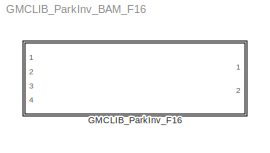
MODEL GMCLIB_ParkInv_BAM_F16
KIND model
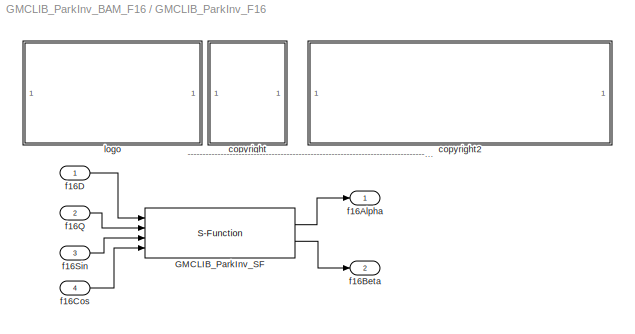
BLOCK [SubSystem] GMCLIB_ParkInv_F16
  Ports = [4, 2]
  RequestExecContextInheritance = off
  SID = 1
BLOCK [S-Function] GMCLIB_ParkInv_F16/GMCLIB_ParkInv_SF
  EnableBusSupport = off
  FunctionName = GMCLIB_ParkInv_SF_F16
  Ports = [4, 2]
  SID = 6
BLOCK [SubSystem] GMCLIB_ParkInv_F16/<copyright redacted>
  Ports = []
  RequestExecContextInheritance = off
  SID = 7
BLOCK [SubSystem] GMCLIB_ParkInv_F16/copyright2
  Ports = []
  RequestExecContextInheritance = off
  SID = 8
BLOCK [Outport] GMCLIB_ParkInv_F16/f16Alpha
  IconDisplay = Port number
  SID = 10
BLOCK [Outport] GMCLIB_ParkInv_F16/f16Beta
  IconDisplay = Port number
  Port = 2
  SID = 11
BLOCK [Inport] GMCLIB_ParkInv_F16/f16Cos
  IconDisplay = Port number
  Port = 4
  SID = 5
BLOCK [Inport] GMCLIB_ParkInv_F16/f16D
  IconDisplay = Port number
  SID = 2
BLOCK [Inport] GMCLIB_ParkInv_F16/f16Q
  IconDisplay = Port number
  Port = 2
  SID = 3
BLOCK [Inport] GMCLIB_ParkInv_F16/f16Sin
  IconDisplay = Port number
  Port = 3
  SID = 4
BLOCK [SubSystem] GMCLIB_ParkInv_F16/logo
  Ports = []
  RequestExecContextInheritance = off
  SID = 9
ANNOTATION GMCLIB_ParkInv_F16: ---------------------------------------------------------------------------------------------------------------------------------------------------------------------------------------------------
LINE GMCLIB_ParkInv_F16/GMCLIB_ParkInv_SF:1 -> GMCLIB_ParkInv_F16/f16Alpha:1
LINE GMCLIB_ParkInv_F16/GMCLIB_ParkInv_SF:2 -> GMCLIB_ParkInv_F16/f16Beta:1
LINE GMCLIB_ParkInv_F16/f16Cos:1 -> GMCLIB_ParkInv_F16/GMCLIB_ParkInv_SF:4
LINE GMCLIB_ParkInv_F16/f16D:1 -> GMCLIB_ParkInv_F16/GMCLIB_ParkInv_SF:1
LINE GMCLIB_ParkInv_F16/f16Q:1 -> GMCLIB_ParkInv_F16/GMCLIB_ParkInv_SF:2
LINE GMCLIB_ParkInv_F16/f16Sin:1 -> GMCLIB_ParkInv_F16/GMCLIB_ParkInv_SF:3
